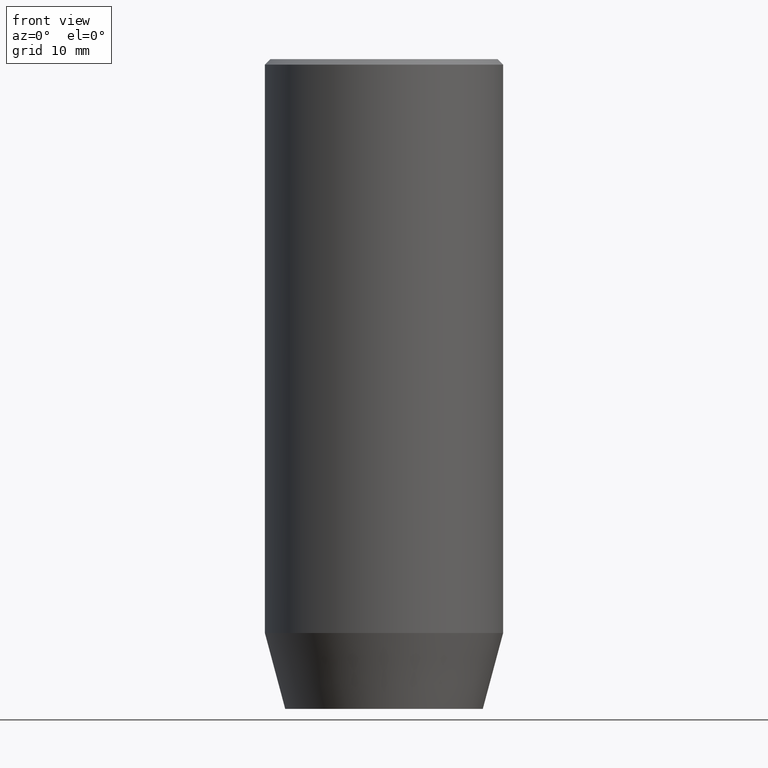
[diagram: clean part render]
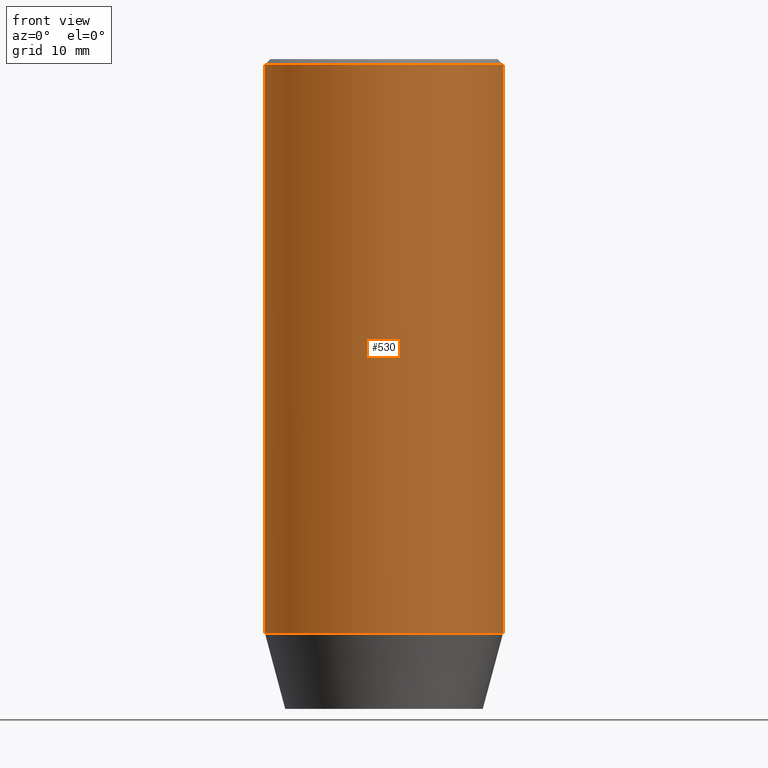
[diagram: same view with one face highlighted and labeled with its STEP entity id]
A machine part, front view. The second image highlights one B-rep face of the part: STEP entity #530.
In plain terms, the highlighted cylindrical surface (partial cylindrical patch) has radius 11 mm, axis along (-0, -0, 1).
Its self-contained STEP definition (entity closure, byte-faithful):
#3 = EDGE_CURVE ( 'NONE', #414, #233, #578, .T. ) ;
#8 = EDGE_CURVE ( 'NONE', #83, #362, #99, .T. ) ;
#9 = CARTESIAN_POINT ( 'NONE',  ( 0.000000000000000000, 0.000000000000000000, 0.000000000000000000 ) ) ;
#80 = CARTESIAN_POINT ( 'NONE',  ( 0.000000000000000000, 0.000000000000000000, -53.00000000000000000 ) ) ;
#83 = VERTEX_POINT ( 'NONE', #258 ) ;
#99 = CIRCLE ( 'NONE', #493, 11.00000000000000000 ) ;
#123 = DIRECTION ( 'NONE',  ( 0.000000000000000000, 0.000000000000000000, -1.000000000000000000 ) ) ;
#131 = CARTESIAN_POINT ( 'NONE',  ( 11.00000000000000000, 0.000000000000000000, -53.00000000000000000 ) ) ;
#132 = DIRECTION ( 'NONE',  ( 1.000000000000000000, 0.000000000000000000, 0.000000000000000000 ) ) ;
#135 = CARTESIAN_POINT ( 'NONE',  ( -11.00000000000000000, 1.347111479062088405E-15, -0.4999999999999935052 ) ) ;
#150 = ORIENTED_EDGE ( 'NONE', *, *, #3, .T. ) ;
#199 = DIRECTION ( 'NONE',  ( -0.000000000000000000, -0.000000000000000000, 1.000000000000000000 ) ) ;
#218 = CARTESIAN_POINT ( 'NONE',  ( -11.00000000000000000, 1.347111479062088405E-15, 0.000000000000000000 ) ) ;
#221 = ORIENTED_EDGE ( 'NONE', *, *, #310, .F. ) ;
#233 = VERTEX_POINT ( 'NONE', #131 ) ;
#254 = CYLINDRICAL_SURFACE ( 'NONE', #459, 11.00000000000000000 ) ;
#258 = CARTESIAN_POINT ( 'NONE',  ( 11.00000000000000000, 0.000000000000000000, -0.4999999999999935052 ) ) ;
#272 = DIRECTION ( 'NONE',  ( -0.000000000000000000, -0.000000000000000000, 1.000000000000000000 ) ) ;
#297 = AXIS2_PLACEMENT_3D ( 'NONE', #80, #272, #132 ) ;
#298 = EDGE_CURVE ( 'NONE', #233, #83, #309, .T. ) ;
#309 = LINE ( 'NONE', #482, #368 ) ;
#310 = EDGE_CURVE ( 'NONE', #414, #362, #532, .T. ) ;
#311 = DIRECTION ( 'NONE',  ( 1.000000000000000000, 0.000000000000000000, 0.000000000000000000 ) ) ;
#324 = VECTOR ( 'NONE', #403, 1000.000000000000000 ) ;
#337 = CARTESIAN_POINT ( 'NONE',  ( -11.00000000000000000, 1.347111479062088405E-15, -53.00000000000000000 ) ) ;
#362 = VERTEX_POINT ( 'NONE', #135 ) ;
#368 = VECTOR ( 'NONE', #496, 1000.000000000000000 ) ;
#390 = ORIENTED_EDGE ( 'NONE', *, *, #8, .T. ) ;
#403 = DIRECTION ( 'NONE',  ( -0.000000000000000000, -0.000000000000000000, 1.000000000000000000 ) ) ;
#414 = VERTEX_POINT ( 'NONE', #337 ) ;
#459 = AXIS2_PLACEMENT_3D ( 'NONE', #9, #199, #564 ) ;
#482 = CARTESIAN_POINT ( 'NONE',  ( 11.00000000000000000, 0.000000000000000000, 0.000000000000000000 ) ) ;
#490 = CARTESIAN_POINT ( 'NONE',  ( 0.000000000000000000, 0.000000000000000000, -0.4999999999999935052 ) ) ;
#493 = AXIS2_PLACEMENT_3D ( 'NONE', #490, #123, #311 ) ;
#496 = DIRECTION ( 'NONE',  ( -0.000000000000000000, -0.000000000000000000, 1.000000000000000000 ) ) ;
#518 = FACE_OUTER_BOUND ( 'NONE', #525, .T. ) ;
#525 = EDGE_LOOP ( 'NONE', ( #221, #150, #529, #390 ) ) ;
#529 = ORIENTED_EDGE ( 'NONE', *, *, #298, .T. ) ;
#530 = ADVANCED_FACE ( 'NONE', ( #518 ), #254, .T. ) ;
#532 = LINE ( 'NONE', #218, #324 ) ;
#564 = DIRECTION ( 'NONE',  ( 1.000000000000000000, 0.000000000000000000, 0.000000000000000000 ) ) ;
#578 = CIRCLE ( 'NONE', #297, 11.00000000000000000 ) ;